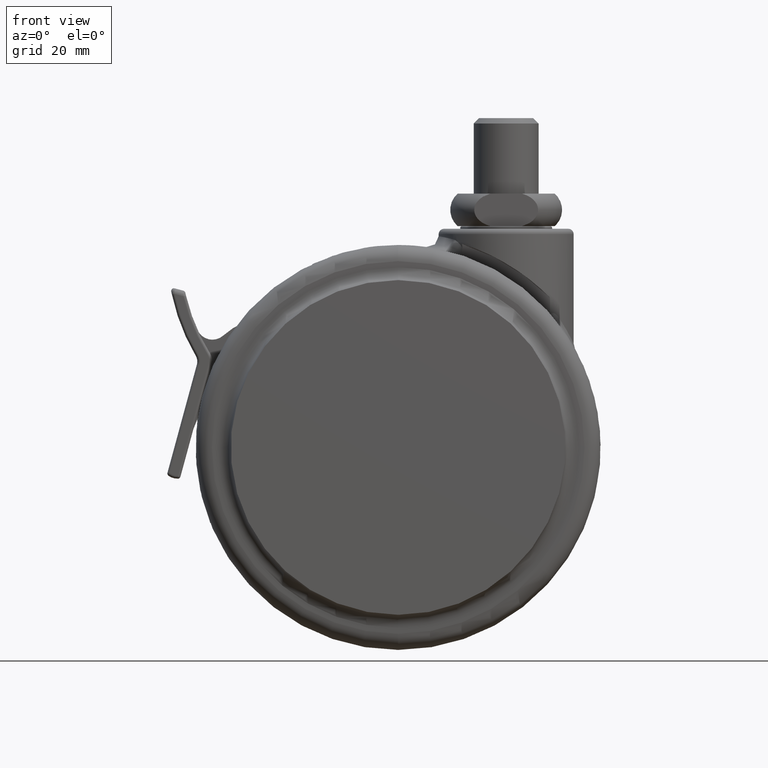
[diagram: clean part render]
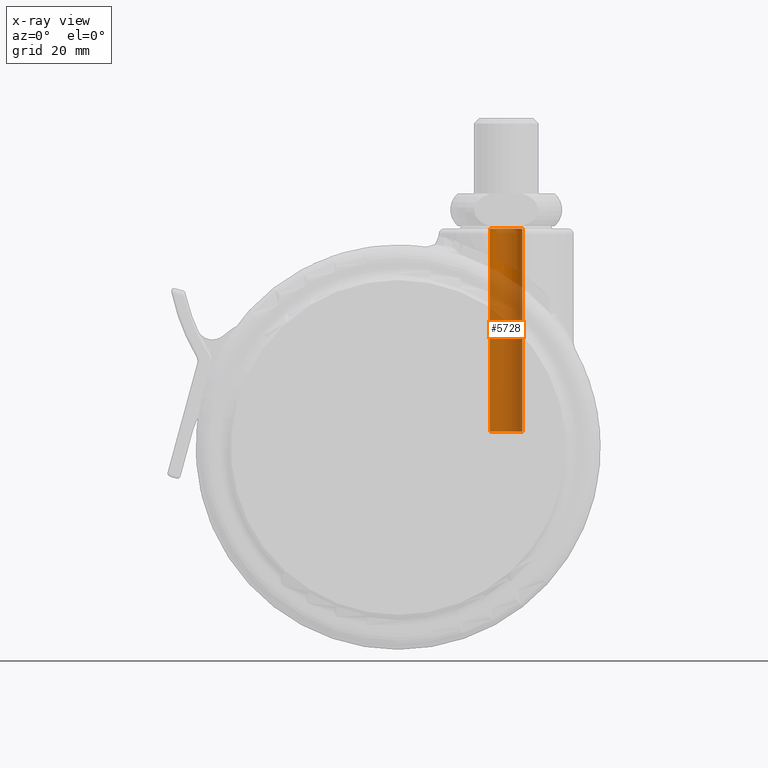
[diagram: x-ray — body ghosted, one internal face saturated and labeled with its STEP entity id]
A machine part, front view, then the same camera in x-ray: the body is ghosted and one INTERNAL B-rep face — a face not visible from any outside direction — is saturated and labeled: STEP entity #5728.
In plain terms, the highlighted cylindrical surface (edge-blend (fillet) strip) has radius 3 mm, axis along (0, 0, 1).
Its self-contained STEP definition (entity closure, byte-faithful):
#152 = VECTOR ( 'NONE', #4563, 1000.000000000000000 ) ;
#499 = CARTESIAN_POINT ( 'NONE',  ( 0.0000000000000000000, 2.842170943040399500E-014, 0.0000000000000000000 ) ) ;
#948 = ORIENTED_EDGE ( 'NONE', *, *, #6416, .F. ) ;
#986 = DIRECTION ( 'NONE',  ( -0.0000000000000000000, -0.0000000000000000000, 1.000000000000000000 ) ) ;
#1176 = ORIENTED_EDGE ( 'NONE', *, *, #3307, .T. ) ;
#1184 = DIRECTION ( 'NONE',  ( -1.000000000000000000, 0.0000000000000000000, 0.0000000000000000000 ) ) ;
#1714 = VERTEX_POINT ( 'NONE', #5040 ) ;
#2726 = VERTEX_POINT ( 'NONE', #7956 ) ;
#3126 = LINE ( 'NONE', #7865, #152 ) ;
#3286 = EDGE_CURVE ( 'NONE', #7221, #2726, #3126, .T. ) ;
#3307 = EDGE_CURVE ( 'NONE', #1714, #2726, #8270, .T. ) ;
#4149 = CARTESIAN_POINT ( 'NONE',  ( -3.000000000000000000, 2.878910347014820000E-014, -37.61339081420354800 ) ) ;
#4202 = AXIS2_PLACEMENT_3D ( 'NONE', #499, #5258, #1184 ) ;
#4410 = ORIENTED_EDGE ( 'NONE', *, *, #7897, .T. ) ;
#4429 = VECTOR ( 'NONE', #7443, 1000.000000000000000 ) ;
#4563 = DIRECTION ( 'NONE',  ( 0.0000000000000000000, 0.0000000000000000000, 1.000000000000000000 ) ) ;
#5040 = CARTESIAN_POINT ( 'NONE',  ( 3.000000000000000000, 2.842170943040399500E-014, 0.0000000000000000000 ) ) ;
#5057 = CARTESIAN_POINT ( 'NONE',  ( 0.0000000000000000000, 2.842170943040399500E-014, -37.61339081420354800 ) ) ;
#5142 = DIRECTION ( 'NONE',  ( 0.0000000000000000000, 0.0000000000000000000, 1.000000000000000000 ) ) ;
#5258 = DIRECTION ( 'NONE',  ( -0.0000000000000000000, -0.0000000000000000000, 1.000000000000000000 ) ) ;
#5272 = AXIS2_PLACEMENT_3D ( 'NONE', #5057, #986, #5721 ) ;
#5610 = CARTESIAN_POINT ( 'NONE',  ( 3.000000000000000000, 2.842170943040399500E-014, -1000.000000000000000 ) ) ;
#5655 = EDGE_LOOP ( 'NONE', ( #8334, #948, #4410, #1176 ) ) ;
#5721 = DIRECTION ( 'NONE',  ( -1.000000000000000000, 0.0000000000000000000, 0.0000000000000000000 ) ) ;
#5728 = ADVANCED_FACE ( 'NONE', ( #7161 ), #8717, .F. ) ;
#6416 = EDGE_CURVE ( 'NONE', #7214, #7221, #8282, .T. ) ;
#6489 = CARTESIAN_POINT ( 'NONE',  ( 0.0000000000000000000, 2.842170943040399500E-014, -1000.000000000000000 ) ) ;
#6511 = DIRECTION ( 'NONE',  ( 1.000000000000000000, 0.0000000000000000000, 0.0000000000000000000 ) ) ;
#7161 = FACE_OUTER_BOUND ( 'NONE', #5655, .T. ) ;
#7214 = VERTEX_POINT ( 'NONE', #7464 ) ;
#7221 = VERTEX_POINT ( 'NONE', #4149 ) ;
#7443 = DIRECTION ( 'NONE',  ( 0.0000000000000000000, 0.0000000000000000000, 1.000000000000000000 ) ) ;
#7464 = CARTESIAN_POINT ( 'NONE',  ( 3.000000000000000000, 2.842170943040399500E-014, -37.61339081420354800 ) ) ;
#7560 = AXIS2_PLACEMENT_3D ( 'NONE', #6489, #5142, #6511 ) ;
#7865 = CARTESIAN_POINT ( 'NONE',  ( -3.000000000000000000, 2.878910347014820000E-014, -1000.000000000000000 ) ) ;
#7897 = EDGE_CURVE ( 'NONE', #7214, #1714, #7948, .T. ) ;
#7948 = LINE ( 'NONE', #5610, #4429 ) ;
#7956 = CARTESIAN_POINT ( 'NONE',  ( -3.000000000000000000, 2.878910347014820000E-014, 0.0000000000000000000 ) ) ;
#8270 = CIRCLE ( 'NONE', #4202, 3.000000000000000000 ) ;
#8282 = CIRCLE ( 'NONE', #5272, 3.000000000000000000 ) ;
#8334 = ORIENTED_EDGE ( 'NONE', *, *, #3286, .F. ) ;
#8717 = CYLINDRICAL_SURFACE ( 'NONE', #7560, 3.000000000000000000 ) ;